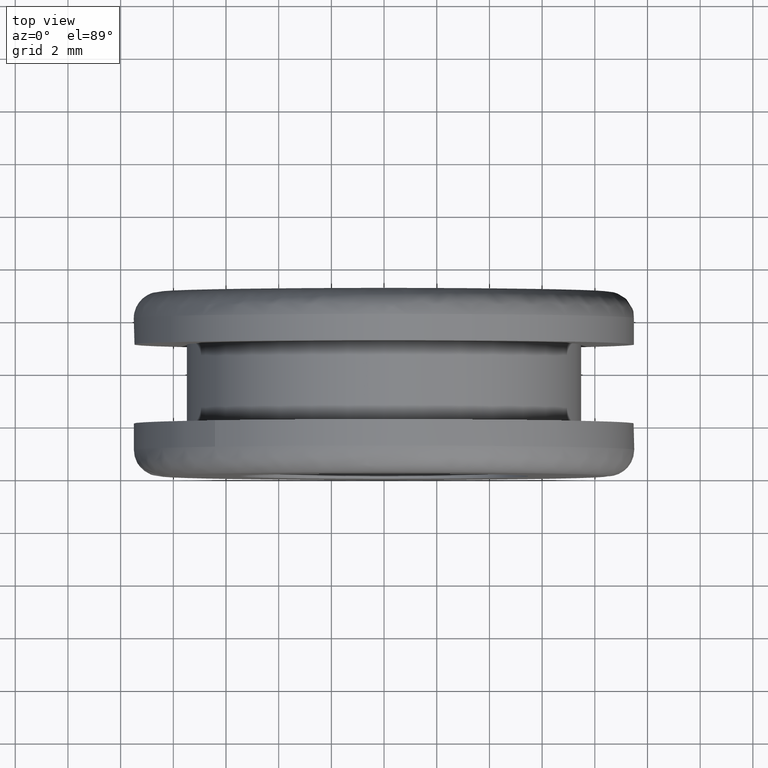
[diagram: clean part render]
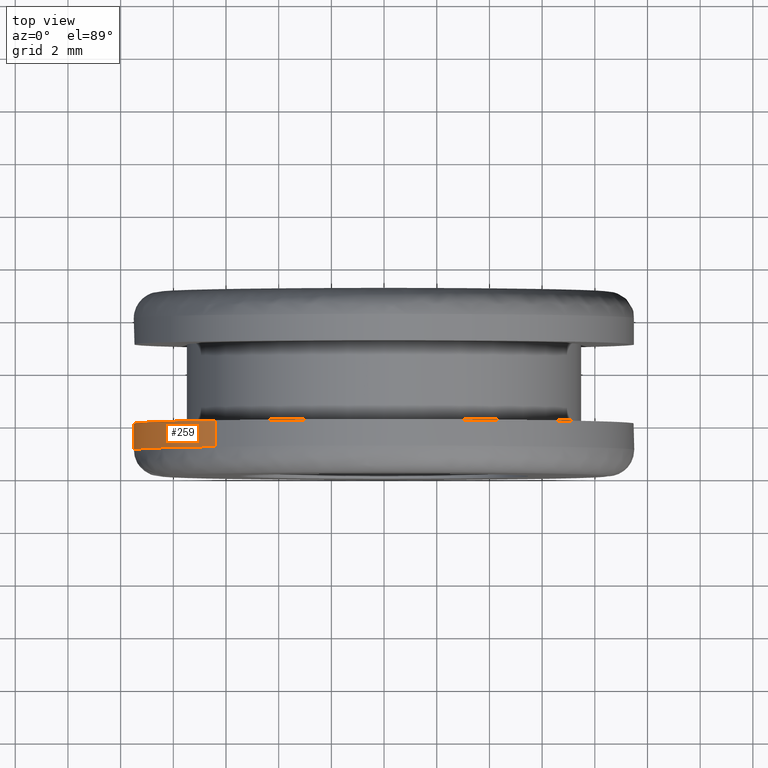
[diagram: same view with one face highlighted and labeled with its STEP entity id]
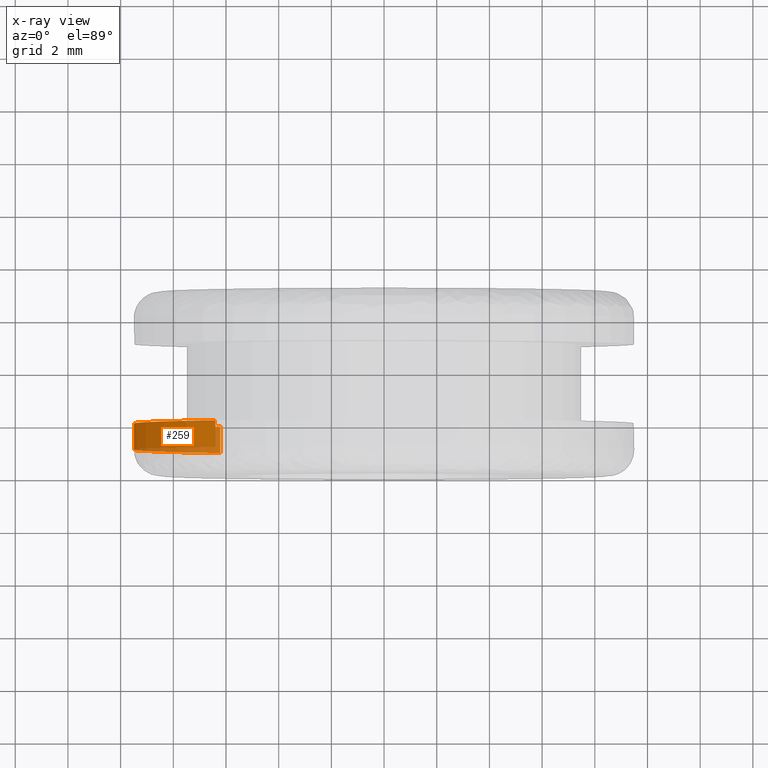
[diagram: x-ray of the same camera — body ghosted, the highlighted face saturated]
A machine part, top view. The second image highlights one B-rep face of the part: STEP entity #259.
The next image is the same camera in x-ray: the body ghosted, the highlighted face saturated — about 19% of this face is hidden behind the body in this view.
In plain terms, the highlighted face is a freeform B-spline surface patch.
Its self-contained STEP definition (entity closure, byte-faithful):
#66=CARTESIAN_POINT('',(-6.216226427721479,2.000000000000012,-7.183907641339557));
#67=VERTEX_POINT('',#66);
#100=CARTESIAN_POINT('',(-6.418106596069949,2.0,7.004135044492156));
#101=VERTEX_POINT('',#100);
#115=CARTESIAN_POINT('',(-6.418106578924638,0.999999999979102,7.004135060202874));
#116=VERTEX_POINT('',#115);
#117=CARTESIAN_POINT('',(-6.418106596069949,2.0,7.004135044492156));
#118=CARTESIAN_POINT('',(-6.418106578924638,0.999999999979102,7.004135060202874));
#119=QUASI_UNIFORM_CURVE('',1,(#117,#118),.UNSPECIFIED.,.F.,.U.);
#120=EDGE_CURVE('',#101,#116,#119,.T.);
#169=CARTESIAN_POINT('',(-6.216226431502614,1.0,-7.183907638067746));
#170=VERTEX_POINT('',#169);
#184=CARTESIAN_POINT('',(-6.216226427721479,2.000000000000012,-7.183907641339557));
#185=CARTESIAN_POINT('',(-6.216226431502614,1.0,-7.183907638067746));
#186=QUASI_UNIFORM_CURVE('',1,(#184,#185),.UNSPECIFIED.,.F.,.U.);
#187=EDGE_CURVE('',#67,#170,#186,.T.);
#192=CARTESIAN_POINT('',(-6.418106972348771,2.025000000001940,7.004134699696175));
#193=CARTESIAN_POINT('',(-13.422241672044946,2.025000000001941,0.586027727347404));
#194=CARTESIAN_POINT('',(-7.004134699696175,2.025000000001940,-6.418106972348771));
#195=CARTESIAN_POINT('',(-6.632360532084006,2.025000000001941,-6.823827281941882));
#196=CARTESIAN_POINT('',(-6.216226741525695,2.025000000001941,-7.183907369805153));
#197=CARTESIAN_POINT('',(-6.418106972348771,0.974374999920411,7.004134699696175));
#198=CARTESIAN_POINT('',(-13.422241672044946,0.974374999920411,0.586027727347404));
#199=CARTESIAN_POINT('',(-7.004134699696175,0.974374999920411,-6.418106972348771));
#200=CARTESIAN_POINT('',(-6.632360532084006,0.974374999920410,-6.823827281941882));
#201=CARTESIAN_POINT('',(-6.216226741525695,0.974374999920411,-7.183907369805153));
#209=(BOUNDED_SURFACE()B_SPLINE_SURFACE(2,1,((#192,#197),(#193,#198),(#194,#199),(#195,#200),(#196,#201)),.UNSPECIFIED.,.F.,.F.,.U.)B_SPLINE_SURFACE_WITH_KNOTS((3,2,3),(2,2),(0.0,15.740115370177611,16.999324599791819),(0.0,1.0),.UNSPECIFIED.)GEOMETRIC_REPRESENTATION_ITEM()RATIONAL_B_SPLINE_SURFACE(((1.0,1.0),(0.707106781186548,0.707106781186548),(1.0,1.0),(0.976568542494924,0.976568542494924),(0.956886118190660,0.956886118190660)))REPRESENTATION_ITEM('')SURFACE());
#210=CARTESIAN_POINT('',(-6.418106596069949,2.000000000000000,7.004135044492156));
#211=CARTESIAN_POINT('',(-9.500000000000000,2.000000000000000,4.180100652646003));
#212=CARTESIAN_POINT('',(-9.500000000000000,2.0,-1.928755E-016));
#213=CARTESIAN_POINT('',(-9.500000000000000,2.0,-4.342462667412750));
#214=CARTESIAN_POINT('',(-6.216226427721479,2.000000000000012,-7.183907641339557));
#222=(BOUNDED_CURVE()B_SPLINE_CURVE(2,(#210,#211,#212,#213,#214),.UNSPECIFIED.,.F.,.U.)B_SPLINE_CURVE_WITH_KNOTS((3,2,3),(0.618415192864190,0.750000000000000,0.885882133147832),.UNSPECIFIED.)CURVE()GEOMETRIC_REPRESENTATION_ITEM()RATIONAL_B_SPLINE_CURVE((0.853959782840026,0.845838809164181,1.0,0.840804178572373,0.854663299575205))REPRESENTATION_ITEM(''));
#223=EDGE_CURVE('',#101,#67,#222,.T.);
#224=ORIENTED_EDGE('',*,*,#223,.T.);
#225=ORIENTED_EDGE('',*,*,#187,.T.);
#226=CARTESIAN_POINT('',(-9.496999798191336,0.999999999922399,0.238735906712227));
#227=VERTEX_POINT('',#226);
#228=CARTESIAN_POINT('',(-9.496999798191336,0.999999999922399,0.238735906712227));
#229=CARTESIAN_POINT('',(-9.499999999999998,1.0,0.119386805172627));
#230=CARTESIAN_POINT('',(-9.500000000000000,1.0,-1.928755E-016));
#231=CARTESIAN_POINT('',(-9.500000000000002,1.0,-4.342462661367804));
#232=CARTESIAN_POINT('',(-6.216226431502614,1.0,-7.183907638067746));
#240=(BOUNDED_CURVE()B_SPLINE_CURVE(2,(#228,#229,#230,#231,#232),.UNSPECIFIED.,.F.,.U.)B_SPLINE_CURVE_WITH_KNOTS((3,2,3),(0.745579891769788,0.750000000000000,0.885882132988790),.UNSPECIFIED.)CURVE()GEOMETRIC_REPRESENTATION_ITEM()RATIONAL_B_SPLINE_CURVE((0.989826157681533,0.994821521091798,1.0,0.840804178758703,0.854663299542762))REPRESENTATION_ITEM(''));
#241=EDGE_CURVE('',#227,#170,#240,.T.);
#242=ORIENTED_EDGE('',*,*,#241,.F.);
#243=CARTESIAN_POINT('',(-6.418106578924638,0.999999999979102,7.004135060202873));
#244=CARTESIAN_POINT('',(-9.395514844908412,0.999999999956226,4.275843663641671));
#245=CARTESIAN_POINT('',(-9.496999798191336,0.999999999922399,0.238735906712227));
#253=(BOUNDED_CURVE()B_SPLINE_CURVE(2,(#243,#244,#245),.UNSPECIFIED.,.F.,.U.)B_SPLINE_CURVE_WITH_KNOTS((3,3),(0.618415192125124,0.745579891769789),.UNSPECIFIED.)CURVE()GEOMETRIC_REPRESENTATION_ITEM()RATIONAL_B_SPLINE_CURVE((0.853959782931252,0.846111602607868,0.989826157681535))REPRESENTATION_ITEM(''));
#254=EDGE_CURVE('',#116,#227,#253,.T.);
#255=ORIENTED_EDGE('',*,*,#254,.F.);
#256=ORIENTED_EDGE('',*,*,#120,.F.);
#257=EDGE_LOOP('',(#224,#225,#242,#255,#256));
#258=FACE_OUTER_BOUND('',#257,.T.);
#259=ADVANCED_FACE('',(#258),#209,.T.);